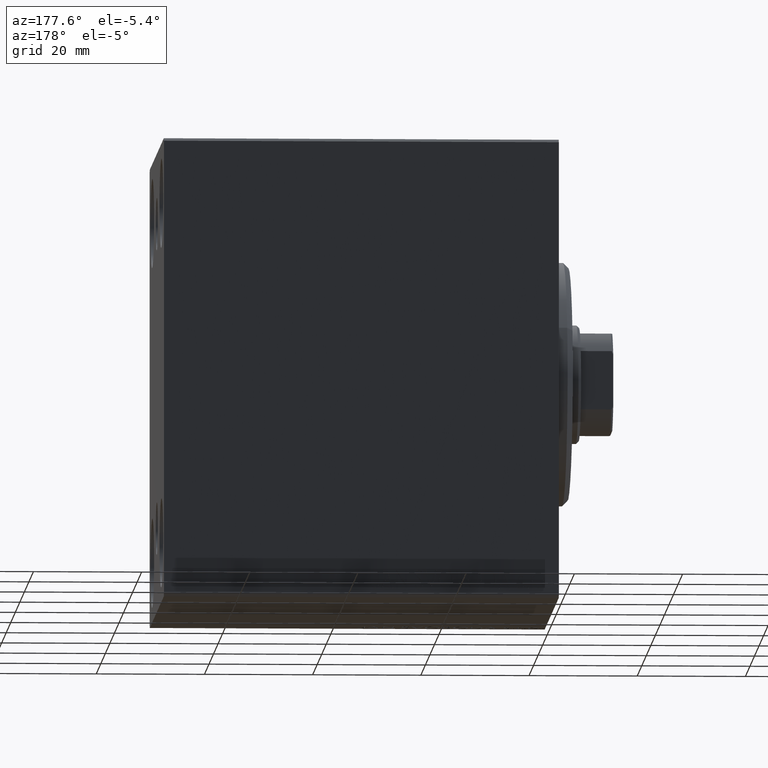
[diagram: clean part render]
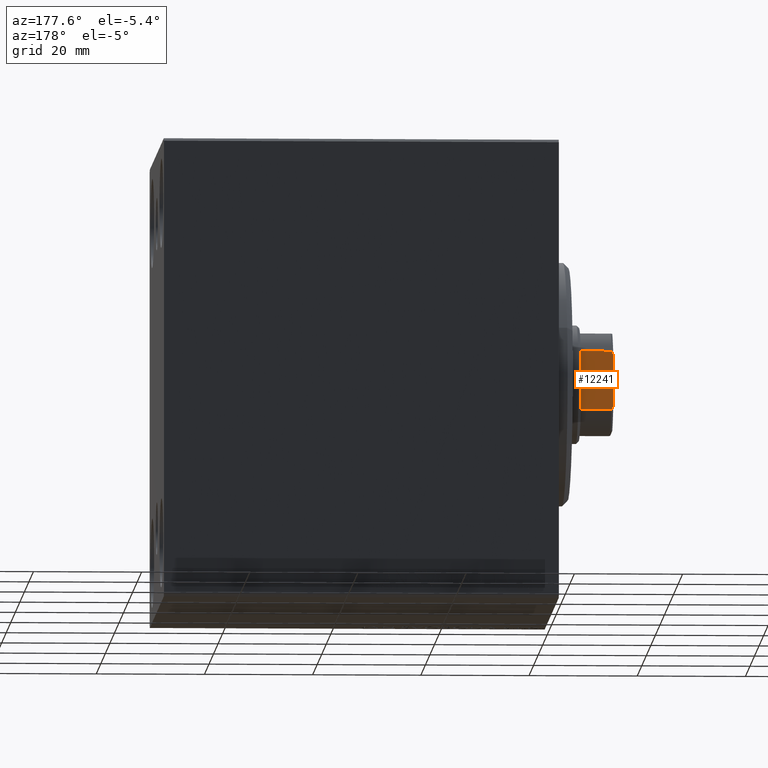
[diagram: same view with one face highlighted and labeled with its STEP entity id]
A machine part, auxiliary view. The second image highlights one B-rep face of the part: STEP entity #12241.
In plain terms, the highlighted planar face has unit normal (0, -1, 0).
Its self-contained STEP definition (entity closure, byte-faithful):
#252 = CARTESIAN_POINT ( 'NONE',  ( -9.000000000000001776, 8.999999999999998224, 61.99999999999999289 ) ) ;
#336 = CARTESIAN_POINT ( 'NONE',  ( 5.408326913195989682, 8.999999999999998224, 56.00000000000000000 ) ) ;
#1009 = EDGE_LOOP ( 'NONE', ( #23082, #12973, #41563, #27504, #28271, #7082 ) ) ;
#2242 = AXIS2_PLACEMENT_3D ( 'NONE', #18887, #15365, #32378 ) ;
#2693 = LINE ( 'NONE', #252, #40748 ) ;
#2822 = VERTEX_POINT ( 'NONE', #28801 ) ;
#3637 = LINE ( 'NONE', #9820, #30496 ) ;
#5302 = CARTESIAN_POINT ( 'NONE',  ( -4.799999999999990941, 8.999999999999998224, 61.99999999999999289 ) ) ;
#5700 = CARTESIAN_POINT ( 'NONE',  ( 5.408326913195989682, 8.999999999999998224, -0.001000000000001000089 ) ) ;
#6214 = CARTESIAN_POINT ( 'NONE',  ( 5.408326913195989682, 8.999999999999998224, 61.69999999999999574 ) ) ;
#6434 = CARTESIAN_POINT ( 'NONE',  ( -5.408326913195988794, 8.999999999999998224, -0.001000000000001000089 ) ) ;
#7082 = ORIENTED_EDGE ( 'NONE', *, *, #26903, .T. ) ;
#8637 = VECTOR ( 'NONE', #9442, 1000.000000000000000 ) ;
#9442 = DIRECTION ( 'NONE',  ( -0.000000000000000000, -0.000000000000000000, 1.000000000000000000 ) ) ;
#9525 = CARTESIAN_POINT ( 'NONE',  ( 5.004607318780309733, 8.999999999999998224, 61.90371420292691340 ) ) ;
#9820 = CARTESIAN_POINT ( 'NONE',  ( -9.000000000000001776, 8.999999999999998224, 55.99999999999999289 ) ) ;
#12241 = ADVANCED_FACE ( 'NONE', ( #29710 ), #43017, .F. ) ;
#12500 = CARTESIAN_POINT ( 'NONE',  ( -5.408326913195988794, 8.999999999999998224, 61.69999999999996732 ) ) ;
#12973 = ORIENTED_EDGE ( 'NONE', *, *, #27208, .T. ) ;
#13127 = DIRECTION ( 'NONE',  ( -1.000000000000000000, -0.000000000000000000, -0.000000000000000000 ) ) ;
#13541 = EDGE_CURVE ( 'NONE', #38202, #34761, #3637, .T. ) ;
#15365 = DIRECTION ( 'NONE',  ( 0.000000000000000000, -1.000000000000000000, 0.000000000000000000 ) ) ;
#18716 = VERTEX_POINT ( 'NONE', #36141 ) ;
#18887 = CARTESIAN_POINT ( 'NONE',  ( -9.000000000000001776, 8.999999999999998224, 61.99999999999999289 ) ) ;
#19343 = EDGE_CURVE ( 'NONE', #38202, #18716, #22900, .T. ) ;
#22010 = CARTESIAN_POINT ( 'NONE',  ( -5.207299490555470811, 8.999999999999998224, 61.80354495430065498 ) ) ;
#22871 = CARTESIAN_POINT ( 'NONE',  ( -5.004607318780300851, 8.999999999999998224, 61.90371420292691340 ) ) ;
#22893 = VERTEX_POINT ( 'NONE', #24348 ) ;
#22900 = LINE ( 'NONE', #5700, #8637 ) ;
#23082 = ORIENTED_EDGE ( 'NONE', *, *, #32609, .F. ) ;
#24348 = CARTESIAN_POINT ( 'NONE',  ( -5.408326913195988794, 8.999999999999998224, 61.69999999999996732 ) ) ;
#25973 = CARTESIAN_POINT ( 'NONE',  ( -4.799999999999990941, 8.999999999999998224, 61.99999999999999289 ) ) ;
#26745 = CARTESIAN_POINT ( 'NONE',  ( 5.207299490555480581, 8.999999999999998224, 61.80354495430068340 ) ) ;
#26903 = EDGE_CURVE ( 'NONE', #22893, #40266, #41285, .T. ) ;
#27191 = DIRECTION ( 'NONE',  ( -1.000000000000000000, -0.000000000000000000, -0.000000000000000000 ) ) ;
#27208 = EDGE_CURVE ( 'NONE', #2822, #18716, #37097, .T. ) ;
#27504 = ORIENTED_EDGE ( 'NONE', *, *, #13541, .T. ) ;
#28271 = ORIENTED_EDGE ( 'NONE', *, *, #30652, .T. ) ;
#28801 = CARTESIAN_POINT ( 'NONE',  ( 4.800000000000012257, 8.999999999999998224, 61.99999999999999289 ) ) ;
#29710 = FACE_OUTER_BOUND ( 'NONE', #1009, .T. ) ;
#30068 = CARTESIAN_POINT ( 'NONE',  ( 4.800000000000012257, 8.999999999999998224, 61.99999999999999289 ) ) ;
#30282 = LINE ( 'NONE', #6434, #40719 ) ;
#30496 = VECTOR ( 'NONE', #13127, 1000.000000000000000 ) ;
#30652 = EDGE_CURVE ( 'NONE', #34761, #22893, #30282, .T. ) ;
#32378 = DIRECTION ( 'NONE',  ( 0.000000000000000000, -0.000000000000000000, -1.000000000000000000 ) ) ;
#32609 = EDGE_CURVE ( 'NONE', #2822, #40266, #2693, .T. ) ;
#34761 = VERTEX_POINT ( 'NONE', #38785 ) ;
#36141 = CARTESIAN_POINT ( 'NONE',  ( 5.408326913195989682, 8.999999999999998224, 61.69999999999999574 ) ) ;
#36494 = DIRECTION ( 'NONE',  ( -0.000000000000000000, -0.000000000000000000, 1.000000000000000000 ) ) ;
#37097 = B_SPLINE_CURVE_WITH_KNOTS ( 'NONE', 3,
 ( #30068, #9525, #26745, #6214 ),
 .UNSPECIFIED., .F., .F.,
 ( 4, 4 ),
 ( 0.000000000000000000, 0.0006782784334759155761 ),
 .UNSPECIFIED. ) ;
#38202 = VERTEX_POINT ( 'NONE', #336 ) ;
#38785 = CARTESIAN_POINT ( 'NONE',  ( -5.408326913195999452, 8.999999999999998224, 56.00000000000000000 ) ) ;
#40266 = VERTEX_POINT ( 'NONE', #5302 ) ;
#40719 = VECTOR ( 'NONE', #36494, 1000.000000000000000 ) ;
#40748 = VECTOR ( 'NONE', #27191, 1000.000000000000000 ) ;
#41285 = B_SPLINE_CURVE_WITH_KNOTS ( 'NONE', 3,
 ( #12500, #22010, #22871, #25973 ),
 .UNSPECIFIED., .F., .F.,
 ( 4, 4 ),
 ( 0.000000000000000000, 0.0006782784334759471264 ),
 .UNSPECIFIED. ) ;
#41563 = ORIENTED_EDGE ( 'NONE', *, *, #19343, .F. ) ;
#43017 = PLANE ( 'NONE',  #2242 ) ;